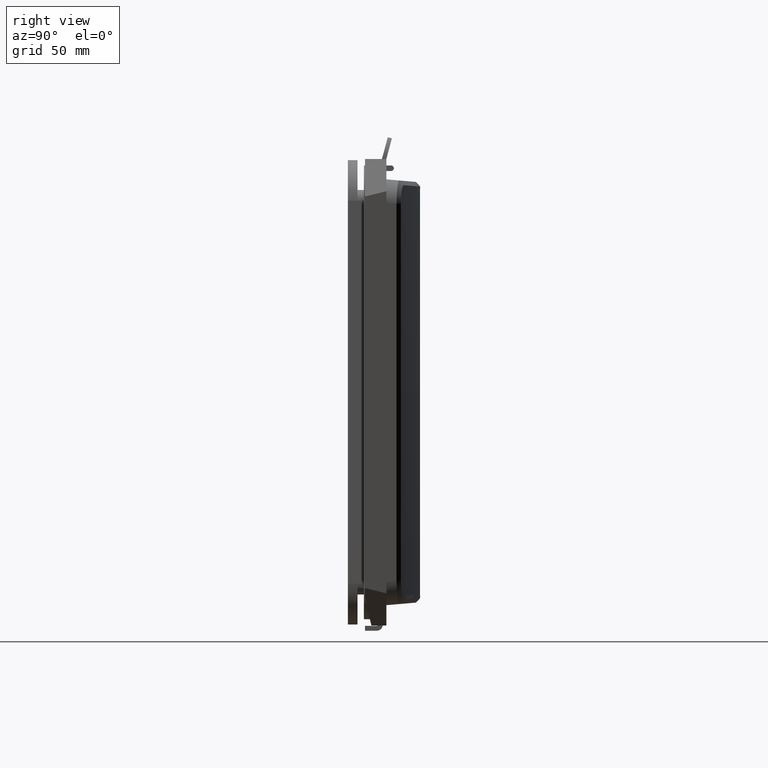
[diagram: clean part render]
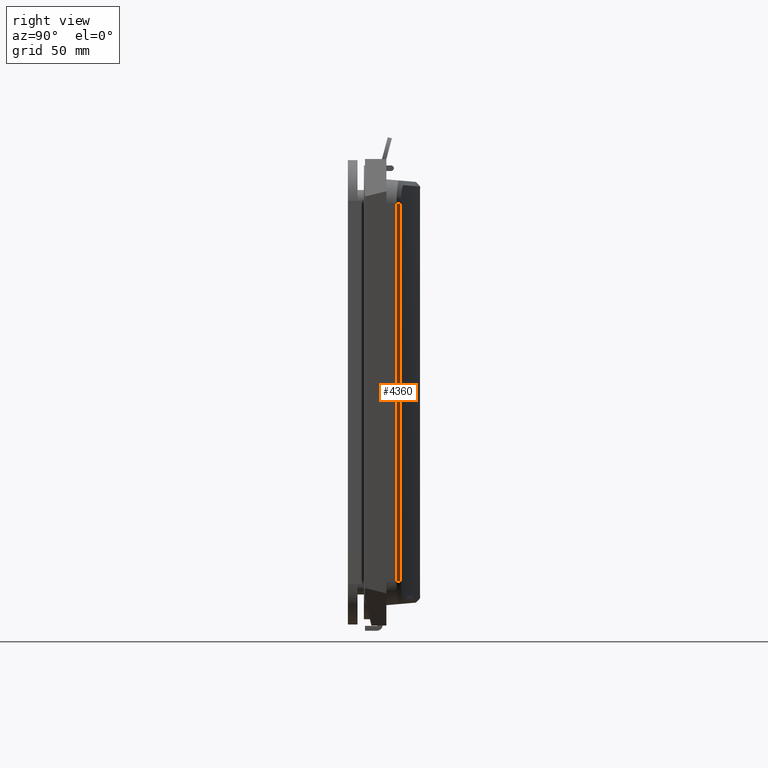
[diagram: same view with one face highlighted and labeled with its STEP entity id]
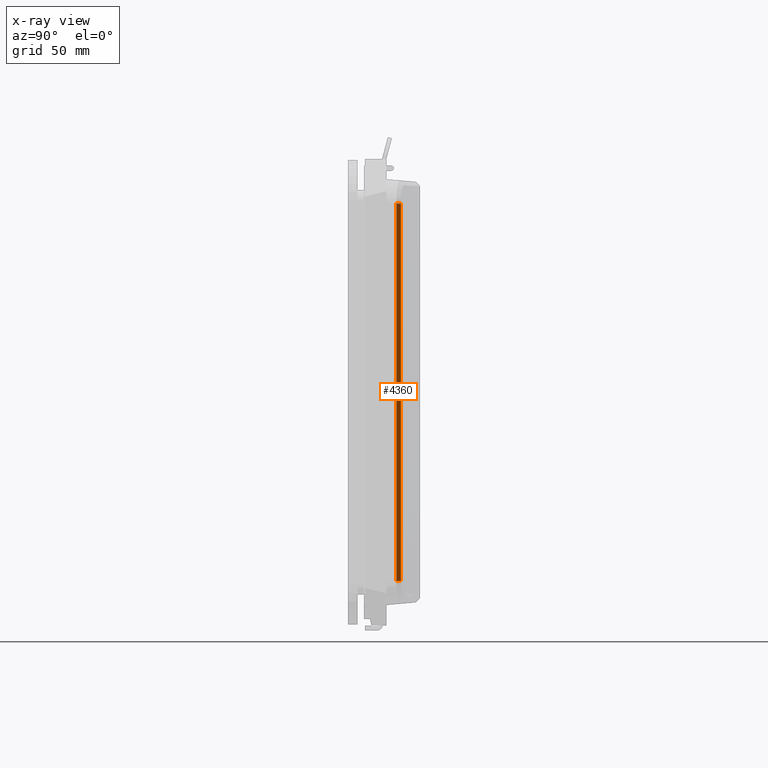
[diagram: x-ray of the same camera — body ghosted, the highlighted face saturated]
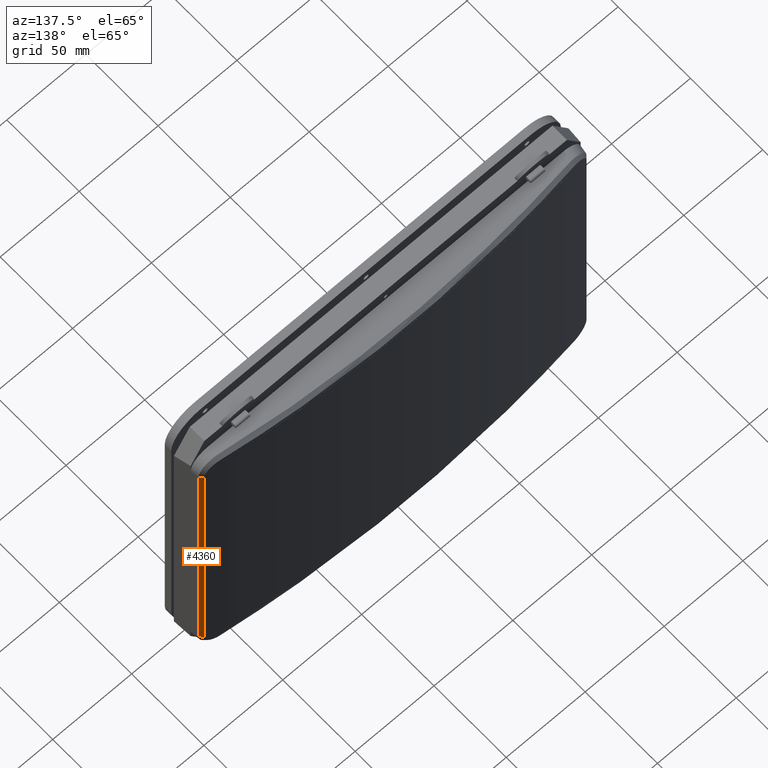
[diagram: same view with one face highlighted and labeled with its STEP entity id]
A machine part, right view. The second image highlights one B-rep face of the part: STEP entity #4360.
The next image is the same camera in x-ray: the body ghosted, the highlighted face saturated — about 0% of this face is hidden behind the body in this view.
A second angle (auxiliary view) of the same face is appended — the face is thin or edge-on in the first view.
In plain terms, the highlighted planar face has unit normal (-0.7482, -0.6635, 0).
Its self-contained STEP definition (entity closure, byte-faithful):
#2665 = DIRECTION ( 'NONE',  ( -0.0000000000000000000, -0.0000000000000000000, 1.000000000000000000 ) ) ;
#2666 = VECTOR ( 'NONE', #2665, 1000.000000000000000 ) ;
#2667 = CARTESIAN_POINT ( 'NONE',  ( 122.9299113163481800, 14.72944634230643900, -91.49744111674230900 ) ) ;
#2668 = LINE ( 'NONE', #2667, #2666 ) ;
#3375 = CARTESIAN_POINT ( 'NONE',  ( 122.9299113163481800, 14.72944634230644000, 88.17814560193647800 ) ) ;
#3604 = EDGE_CURVE ( 'NONE', #4939, #4867, #2668, .T. ) ;
#3851 = VERTEX_POINT ( 'NONE', #5917 ) ;
#3853 = EDGE_CURVE ( 'NONE', #3851, #3854, #5931, .T. ) ;
#3854 = VERTEX_POINT ( 'NONE', #5942 ) ;
#4211 = ORIENTED_EDGE ( 'NONE', *, *, #3853, .F. ) ;
#4212 = ORIENTED_EDGE ( 'NONE', *, *, #4213, .F. ) ;
#4213 = EDGE_CURVE ( 'NONE', #4867, #3851, #6718, .T. ) ;
#4214 = ORIENTED_EDGE ( 'NONE', *, *, #3604, .F. ) ;
#4230 = EDGE_CURVE ( 'NONE', #4939, #3854, #6743, .T. ) ;
#4360 = ADVANCED_FACE ( 'NONE', ( #6959 ), #6958, .F. ) ;
#4361 = ORIENTED_EDGE ( 'NONE', *, *, #4230, .T. ) ;
#4403 = EDGE_LOOP ( 'NONE', ( #4361, #4211, #4212, #4214 ) ) ;
#4867 = VERTEX_POINT ( 'NONE', #3375 ) ;
#4939 = VERTEX_POINT ( 'NONE', #7353 ) ;
#5917 = CARTESIAN_POINT ( 'NONE',  ( 121.1120363144710100, 16.77928315033794200, 88.17814560193646400 ) ) ;
#5928 = DIRECTION ( 'NONE',  ( -0.0000000000000000000, -0.0000000000000000000, -1.000000000000000000 ) ) ;
#5929 = VECTOR ( 'NONE', #5928, 1000.000000000000000 ) ;
#5930 = CARTESIAN_POINT ( 'NONE',  ( 121.1120363144709800, 16.77928315033794200, -150.0000000000000000 ) ) ;
#5931 = LINE ( 'NONE', #5930, #5929 ) ;
#5942 = CARTESIAN_POINT ( 'NONE',  ( 121.1120363144709800, 16.77928315033791800, -88.17814560193649200 ) ) ;
#6716 = CARTESIAN_POINT ( 'NONE',  ( 121.1120363144710100, 16.77928315033794200, 88.17814560193646400 ) ) ;
#6717 = CARTESIAN_POINT ( 'NONE',  ( 122.9299113163481800, 14.72944634230644000, 88.17814560193647800 ) ) ;
#6718 = B_SPLINE_CURVE_WITH_KNOTS ( 'NONE', 1,
 ( #6717, #6716 ),
 .UNSPECIFIED., .F., .F.,
 ( 2, 2 ),
 ( 0.0000000000000000000, 1.000000000000000000 ),
 .UNSPECIFIED. ) ;
#6743 = B_SPLINE_CURVE_WITH_KNOTS ( 'NONE', 3,
 ( #6856, #6855, #6854, #6831 ),
 .UNSPECIFIED., .F., .F.,
 ( 4, 4 ),
 ( 0.0000000000000000000, 1.000000000000000000 ),
 .UNSPECIFIED. ) ;
#6831 = CARTESIAN_POINT ( 'NONE',  ( 121.1120363144709800, 16.77928315033791800, -88.17814560193649200 ) ) ;
#6854 = CARTESIAN_POINT ( 'NONE',  ( 121.7179946484300500, 16.09600421432742900, -88.17814560193649200 ) ) ;
#6855 = CARTESIAN_POINT ( 'NONE',  ( 122.3239529823891200, 15.41272527831693200, -88.17814560193649200 ) ) ;
#6856 = CARTESIAN_POINT ( 'NONE',  ( 122.9299113163482000, 14.72944634230643900, -88.17814560193649200 ) ) ;
#6947 = DIRECTION ( 'NONE',  ( 0.6635066191415887000, -0.7481704126436027300, 0.0000000000000000000 ) ) ;
#6948 = DIRECTION ( 'NONE',  ( -0.7481704126436027300, -0.6635066191415887000, 0.0000000000000000000 ) ) ;
#6956 = CARTESIAN_POINT ( 'NONE',  ( 122.9299113163481800, 14.72944634230644000, -150.0000000000000000 ) ) ;
#6957 = AXIS2_PLACEMENT_3D ( 'NONE', #6956, #6948, #6947 ) ;
#6958 = PLANE ( 'NONE',  #6957 ) ;
#6959 = FACE_OUTER_BOUND ( 'NONE', #4403, .T. ) ;
#7353 = CARTESIAN_POINT ( 'NONE',  ( 122.9299113163482000, 14.72944634230643900, -88.17814560193649200 ) ) ;